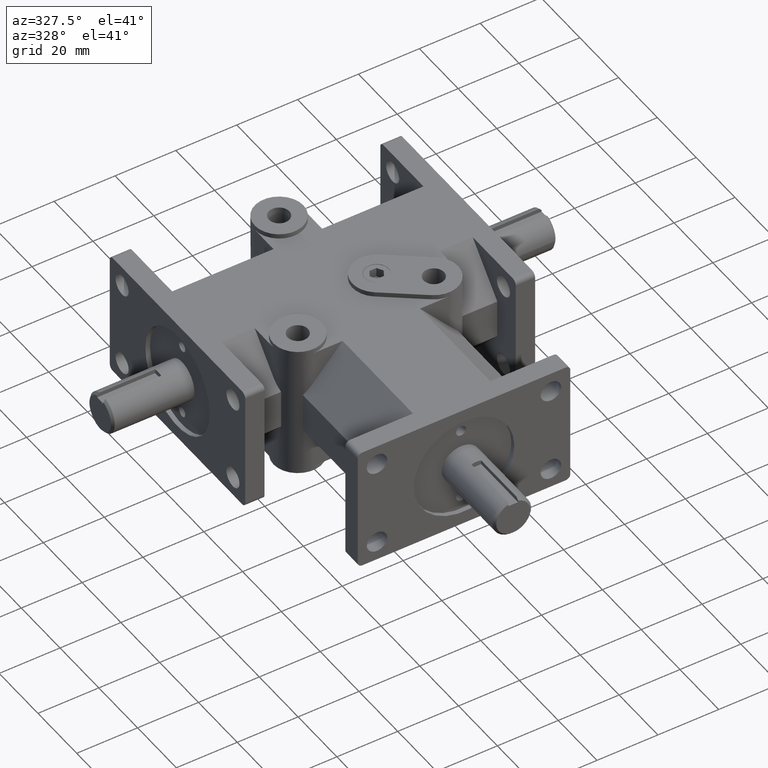
[diagram: clean part render]
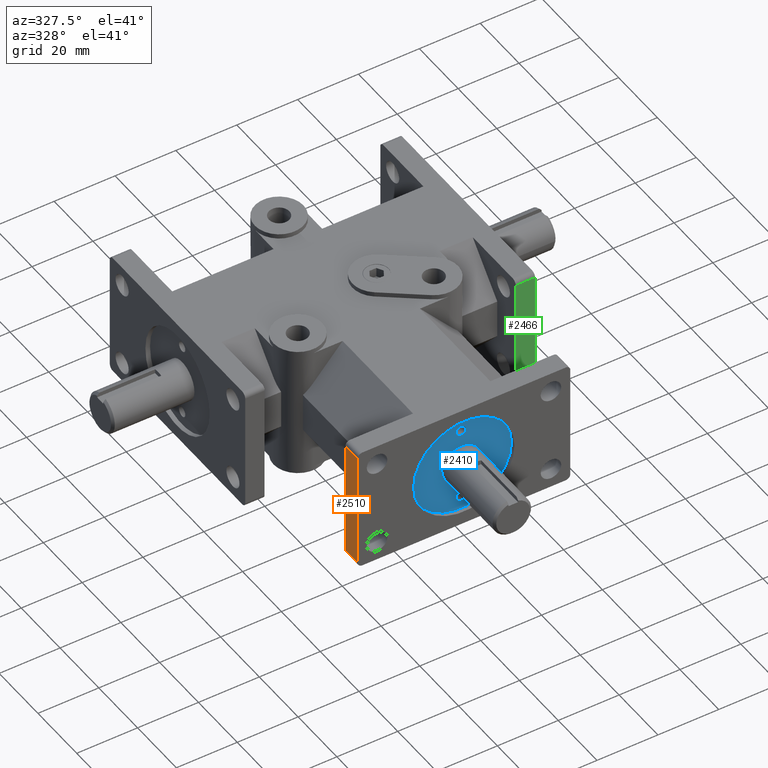
[diagram: same view with three faces highlighted in distinct colors, each labeled with its STEP entity id]
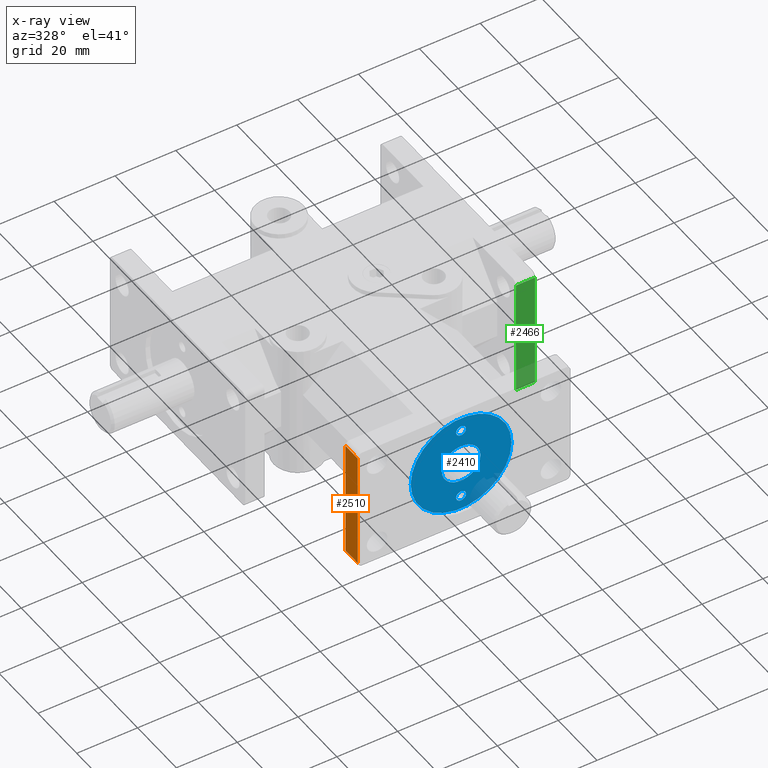
[diagram: x-ray of the same camera — body ghosted, the three highlighted faces saturated]
A machine part, auxiliary view with three faces highlighted in distinct colors.
The next image is the same camera in x-ray (body ghosted, the three faces saturated) — at least one of them is partly hidden behind the body in this view.
Their STEP definitions:

[orange] entity #2510 — the highlighted planar face has unit normal (-1, 0, 0).
#352=FACE_OUTER_BOUND('',#531,.T.);
#531=EDGE_LOOP('',(#2282,#2283,#2284,#2285));
#652=LINE('',#3826,#880);
#655=LINE('',#3845,#883);
#667=LINE('',#3903,#895);
#772=LINE('',#4245,#1000);
#880=VECTOR('',#3046,1.);
#883=VECTOR('',#3069,1.);
#895=VECTOR('',#3137,1.);
#1000=VECTOR('',#3510,1.);
#1123=VERTEX_POINT('',#3823);
#1124=VERTEX_POINT('',#3825);
#1129=VERTEX_POINT('',#3841);
#1130=VERTEX_POINT('',#3843);
#1384=EDGE_CURVE('',#1123,#1124,#652,.T.);
#1394=EDGE_CURVE('',#1130,#1129,#655,.T.);
#1424=EDGE_CURVE('',#1129,#1123,#667,.T.);
#1585=EDGE_CURVE('',#1130,#1124,#772,.T.);
#2282=ORIENTED_EDGE('',*,*,#1384,.F.);
#2283=ORIENTED_EDGE('',*,*,#1424,.F.);
#2284=ORIENTED_EDGE('',*,*,#1394,.F.);
#2285=ORIENTED_EDGE('',*,*,#1585,.T.);
#2375=PLANE('',#2777);
#2510=ADVANCED_FACE('',(#352),#2375,.T.);
#2777=AXIS2_PLACEMENT_3D('',#4246,#3511,#3512);
#3046=DIRECTION('',(0.,1.,0.));
#3069=DIRECTION('',(0.,-1.,0.));
#3137=DIRECTION('',(0.,0.,-1.));
#3510=DIRECTION('',(0.,0.,-1.));
#3511=DIRECTION('center_axis',(-1.,0.,0.));
#3512=DIRECTION('ref_axis',(0.,1.,0.));
#3823=CARTESIAN_POINT('',(-1.375,2.22044604925031E-16,-0.755));
#3825=CARTESIAN_POINT('',(-1.375,0.25,-0.755));
#3826=CARTESIAN_POINT('',(-1.375,1.18071609311741,-0.755));
#3841=CARTESIAN_POINT('',(-1.375,2.22044604925031E-16,0.755));
#3843=CARTESIAN_POINT('',(-1.375,0.25,0.755));
#3845=CARTESIAN_POINT('',(-1.375,1.18071609311741,0.755));
#3903=CARTESIAN_POINT('',(-1.375,2.22044604925031E-16,0.));
#4245=CARTESIAN_POINT('',(-1.375,0.25,0.));
#4246=CARTESIAN_POINT('Origin',(-1.375,0.25,0.));

[blue] entity #2410 — the highlighted planar face has unit normal (0, 1, 0).
#28=FACE_BOUND('',#391,.T.);
#29=FACE_BOUND('',#392,.T.);
#30=FACE_BOUND('',#393,.T.);
#122=CIRCLE('',#2565,0.064);
#124=CIRCLE('',#2569,0.064);
#139=CIRCLE('',#2596,0.652);
#141=CIRCLE('',#2600,0.25);
#252=FACE_OUTER_BOUND('',#390,.T.);
#390=EDGE_LOOP('',(#1769));
#391=EDGE_LOOP('',(#1770));
#392=EDGE_LOOP('',(#1771));
#393=EDGE_LOOP('',(#1772));
#1102=VERTEX_POINT('',#3754);
#1104=VERTEX_POINT('',#3761);
#1119=VERTEX_POINT('',#3810);
#1121=VERTEX_POINT('',#3817);
#1353=EDGE_CURVE('',#1102,#1102,#122,.T.);
#1356=EDGE_CURVE('',#1104,#1104,#124,.T.);
#1379=EDGE_CURVE('',#1119,#1119,#139,.T.);
#1381=EDGE_CURVE('',#1121,#1121,#141,.T.);
#1769=ORIENTED_EDGE('',*,*,#1379,.T.);
#1770=ORIENTED_EDGE('',*,*,#1381,.T.);
#1771=ORIENTED_EDGE('',*,*,#1353,.T.);
#1772=ORIENTED_EDGE('',*,*,#1356,.T.);
#2314=PLANE('',#2599);
#2410=ADVANCED_FACE('',(#252,#28,#29,#30),#2314,.F.);
#2565=AXIS2_PLACEMENT_3D('',#3755,#2957,#2958);
#2569=AXIS2_PLACEMENT_3D('',#3762,#2966,#2967);
#2596=AXIS2_PLACEMENT_3D('',#3812,#3028,#3029);
#2599=AXIS2_PLACEMENT_3D('',#3816,#3034,#3035);
#2600=AXIS2_PLACEMENT_3D('',#3818,#3036,#3037);
#2957=DIRECTION('center_axis',(0.,1.,0.));
#2958=DIRECTION('ref_axis',(1.,0.,0.));
#2966=DIRECTION('center_axis',(0.,1.,0.));
#2967=DIRECTION('ref_axis',(1.,0.,0.));
#3028=DIRECTION('center_axis',(0.,-1.,0.));
#3029=DIRECTION('ref_axis',(1.,0.,0.));
#3034=DIRECTION('center_axis',(0.,1.,0.));
#3035=DIRECTION('ref_axis',(0.,0.,-1.));
#3036=DIRECTION('center_axis',(0.,1.,0.));
#3037=DIRECTION('ref_axis',(1.,0.,0.));
#3754=CARTESIAN_POINT('',(-0.0640000000000001,0.0600000000000002,-0.47));
#3755=CARTESIAN_POINT('Origin',(-8.63347479444776E-17,0.0600000000000002,
-0.47));
#3761=CARTESIAN_POINT('',(-0.0639999999999999,0.0600000000000002,0.47));
#3762=CARTESIAN_POINT('Origin',(1.43891246574129E-16,0.0600000000000002,
0.47));
#3810=CARTESIAN_POINT('',(-0.652,0.0600000000000002,7.98469713044074E-17));
#3812=CARTESIAN_POINT('Origin',(0.,0.0600000000000002,0.));
#3816=CARTESIAN_POINT('Origin',(0.0482727272727272,0.0600000000000002,-1.73008111940189E-18));
#3817=CARTESIAN_POINT('',(-0.25,0.0600000000000002,-3.06161699786838E-17));
#3818=CARTESIAN_POINT('Origin',(0.,0.0600000000000002,0.));

[green] entity #2466 — the highlighted planar face has unit normal (0, -1, 0).
#308=FACE_OUTER_BOUND('',#479,.T.);
#479=EDGE_LOOP('',(#2068,#2069,#2070,#2071));
#662=LINE('',#3887,#890);
#663=LINE('',#3892,#891);
#673=LINE('',#3937,#901);
#716=LINE('',#4063,#944);
#890=VECTOR('',#3118,1.);
#891=VECTOR('',#3123,1.);
#901=VECTOR('',#3175,1.);
#944=VECTOR('',#3302,1.);
#1143=VERTEX_POINT('',#3883);
#1144=VERTEX_POINT('',#3885);
#1145=VERTEX_POINT('',#3889);
#1146=VERTEX_POINT('',#3891);
#1415=EDGE_CURVE('',#1144,#1143,#662,.T.);
#1417=EDGE_CURVE('',#1145,#1146,#663,.T.);
#1442=EDGE_CURVE('',#1144,#1146,#673,.T.);
#1501=EDGE_CURVE('',#1143,#1145,#716,.T.);
#2068=ORIENTED_EDGE('',*,*,#1415,.F.);
#2069=ORIENTED_EDGE('',*,*,#1442,.T.);
#2070=ORIENTED_EDGE('',*,*,#1417,.F.);
#2071=ORIENTED_EDGE('',*,*,#1501,.F.);
#2348=PLANE('',#2717);
#2466=ADVANCED_FACE('',(#308),#2348,.T.);
#2717=AXIS2_PLACEMENT_3D('',#4113,#3347,#3348);
#3118=DIRECTION('',(1.,0.,0.));
#3123=DIRECTION('',(-1.,0.,0.));
#3175=DIRECTION('',(0.,0.,-1.));
#3302=DIRECTION('',(0.,0.,-1.));
#3347=DIRECTION('center_axis',(0.,-1.,0.));
#3348=DIRECTION('ref_axis',(0.,0.,1.));
#3883=CARTESIAN_POINT('',(1.875,1.5,0.755));
#3885=CARTESIAN_POINT('',(1.625,1.5,0.755));
#3887=CARTESIAN_POINT('',(0.8125,1.5,0.755));
#3889=CARTESIAN_POINT('',(1.875,1.5,-0.755));
#3891=CARTESIAN_POINT('',(1.625,1.5,-0.755));
#3892=CARTESIAN_POINT('',(0.8125,1.5,-0.755));
#3937=CARTESIAN_POINT('',(1.625,1.5,0.));
#4063=CARTESIAN_POINT('',(1.875,1.5,0.));
#4113=CARTESIAN_POINT('Origin',(1.625,1.5,0.));